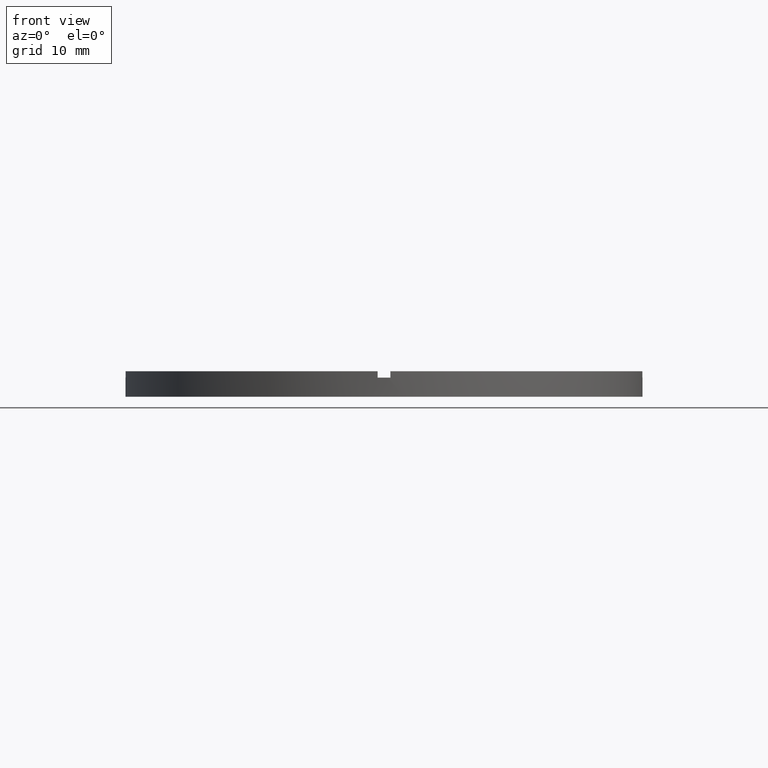
[diagram: clean part render]
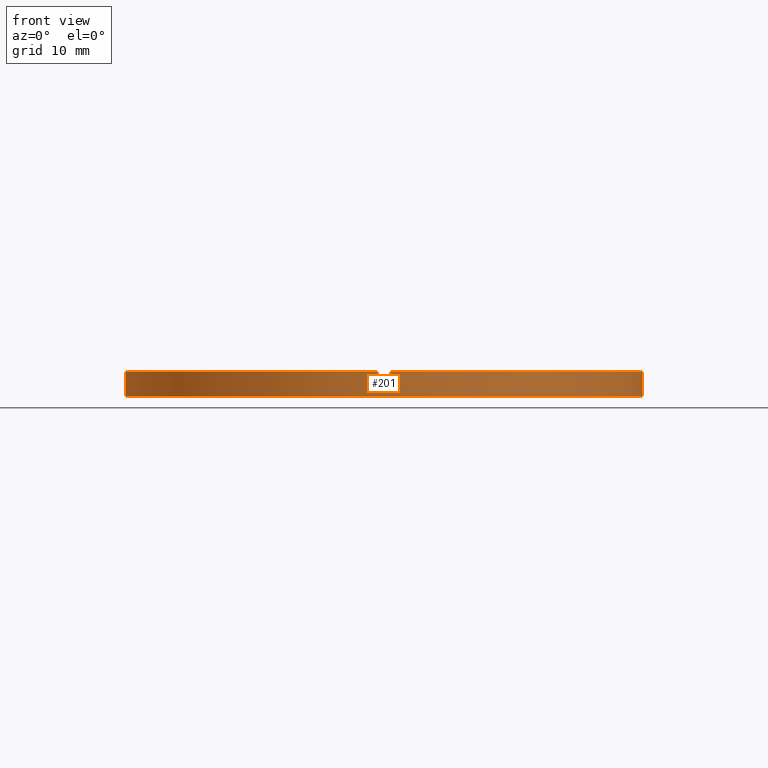
[diagram: same view with one face highlighted and labeled with its STEP entity id]
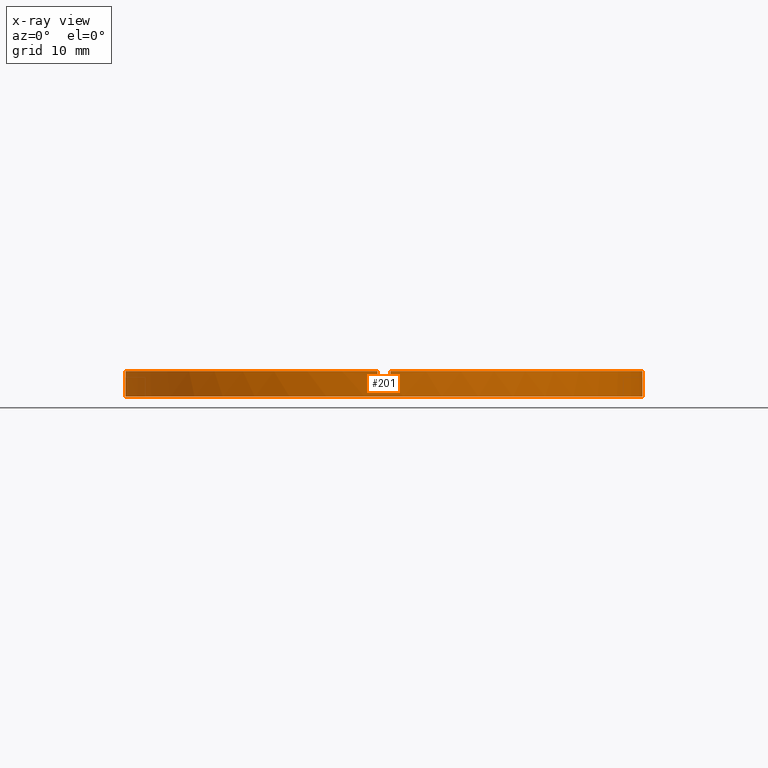
[diagram: x-ray of the same camera — body ghosted, the highlighted face saturated]
A machine part, front view. The second image highlights one B-rep face of the part: STEP entity #201.
The next image is the same camera in x-ray: the body ghosted, the highlighted face saturated — about 0% of this face is hidden behind the body in this view.
In plain terms, the highlighted cylindrical surface (partial cylindrical patch) has radius 40.5 mm, axis along (-0, -0, -1).
Its self-contained STEP definition (entity closure, byte-faithful):
#1 = AXIS2_PLACEMENT_3D ( 'NONE', #721, #779, #77 ) ;
#22 = AXIS2_PLACEMENT_3D ( 'NONE', #441, #181, #245 ) ;
#29 = VECTOR ( 'NONE', #524, 1000.000000000000000 ) ;
#34 = DIRECTION ( 'NONE',  ( 1.000000000000000000, 0.000000000000000000, 0.000000000000000000 ) ) ;
#41 = CARTESIAN_POINT ( 'NONE',  ( 40.50000000000000000, 4.959819536546780600E-15, 0.000000000000000000 ) ) ;
#50 = CARTESIAN_POINT ( 'NONE',  ( 40.50000000000000000, 4.959819536546780600E-15, 4.000000000000000000 ) ) ;
#52 = CIRCLE ( 'NONE', #183, 40.50000000000000000 ) ;
#62 = CIRCLE ( 'NONE', #116, 40.50000000000000000 ) ;
#64 = LINE ( 'NONE', #568, #331 ) ;
#71 = CYLINDRICAL_SURFACE ( 'NONE', #751, 40.50000000000000000 ) ;
#72 = EDGE_CURVE ( 'NONE', #162, #688, #643, .T. ) ;
#77 = DIRECTION ( 'NONE',  ( 1.000000000000000000, 0.000000000000000000, 0.000000000000000000 ) ) ;
#108 = VERTEX_POINT ( 'NONE', #127 ) ;
#116 = AXIS2_PLACEMENT_3D ( 'NONE', #548, #701, #468 ) ;
#126 = DIRECTION ( 'NONE',  ( 0.000000000000000000, 0.000000000000000000, 1.000000000000000000 ) ) ;
#127 = CARTESIAN_POINT ( 'NONE',  ( 40.50000000000000000, 4.959819536546780600E-15, 3.000000000000000000 ) ) ;
#130 = ORIENTED_EDGE ( 'NONE', *, *, #599, .F. ) ;
#131 = DIRECTION ( 'NONE',  ( -0.000000000000000000, -0.000000000000000000, -1.000000000000000000 ) ) ;
#132 = EDGE_CURVE ( 'NONE', #398, #511, #356, .T. ) ;
#157 = CARTESIAN_POINT ( 'NONE',  ( -1.000000000000159206, -40.48765243873741326, 3.000000000000000000 ) ) ;
#162 = VERTEX_POINT ( 'NONE', #157 ) ;
#164 = ORIENTED_EDGE ( 'NONE', *, *, #580, .F. ) ;
#167 = CARTESIAN_POINT ( 'NONE',  ( 40.48765243873741326, -1.000000000000156986, 4.000000000000000000 ) ) ;
#177 = DIRECTION ( 'NONE',  ( 1.000000000000000000, 0.000000000000000000, 0.000000000000000000 ) ) ;
#181 = DIRECTION ( 'NONE',  ( 0.000000000000000000, 0.000000000000000000, 1.000000000000000000 ) ) ;
#183 = AXIS2_PLACEMENT_3D ( 'NONE', #503, #718, #34 ) ;
#198 = DIRECTION ( 'NONE',  ( 0.000000000000000000, 0.000000000000000000, 1.000000000000000000 ) ) ;
#201 = ADVANCED_FACE ( 'NONE', ( #340 ), #71, .T. ) ;
#220 = ORIENTED_EDGE ( 'NONE', *, *, #257, .T. ) ;
#234 = VERTEX_POINT ( 'NONE', #448 ) ;
#236 = VERTEX_POINT ( 'NONE', #296 ) ;
#242 = ORIENTED_EDGE ( 'NONE', *, *, #72, .T. ) ;
#245 = DIRECTION ( 'NONE',  ( 1.000000000000000000, 0.000000000000000000, 0.000000000000000000 ) ) ;
#252 = VERTEX_POINT ( 'NONE', #382 ) ;
#257 = EDGE_CURVE ( 'NONE', #758, #236, #327, .T. ) ;
#258 = CARTESIAN_POINT ( 'NONE',  ( 0.000000000000000000, 0.000000000000000000, 4.000000000000000000 ) ) ;
#260 = DIRECTION ( 'NONE',  ( 1.000000000000000000, 0.000000000000000000, 0.000000000000000000 ) ) ;
#264 = CARTESIAN_POINT ( 'NONE',  ( 0.9999999999998409050, -40.48765243873742037, 4.000000000000000000 ) ) ;
#265 = EDGE_CURVE ( 'NONE', #729, #108, #324, .T. ) ;
#269 = CARTESIAN_POINT ( 'NONE',  ( 40.48765243873741326, -1.000000000000156986, 4.000000000000000000 ) ) ;
#281 = CIRCLE ( 'NONE', #22, 40.50000000000000000 ) ;
#285 = EDGE_CURVE ( 'NONE', #162, #430, #52, .T. ) ;
#289 = DIRECTION ( 'NONE',  ( -0.000000000000000000, -0.000000000000000000, -1.000000000000000000 ) ) ;
#296 = CARTESIAN_POINT ( 'NONE',  ( -40.50000000000000000, 0.000000000000000000, 0.000000000000000000 ) ) ;
#306 = DIRECTION ( 'NONE',  ( -0.000000000000000000, -0.000000000000000000, -1.000000000000000000 ) ) ;
#310 = CARTESIAN_POINT ( 'NONE',  ( 0.9999999999998409050, -40.48765243873742037, 3.000000000000000000 ) ) ;
#321 = EDGE_CURVE ( 'NONE', #398, #430, #64, .T. ) ;
#324 = CIRCLE ( 'NONE', #715, 40.50000000000000000 ) ;
#325 = VECTOR ( 'NONE', #545, 1000.000000000000000 ) ;
#327 = LINE ( 'NONE', #614, #573 ) ;
#331 = VECTOR ( 'NONE', #289, 1000.000000000000000 ) ;
#338 = LINE ( 'NONE', #50, #325 ) ;
#340 = FACE_OUTER_BOUND ( 'NONE', #658, .T. ) ;
#346 = VECTOR ( 'NONE', #519, 1000.000000000000000 ) ;
#348 = CARTESIAN_POINT ( 'NONE',  ( 0.000000000000000000, 0.000000000000000000, 3.000000000000000000 ) ) ;
#350 = AXIS2_PLACEMENT_3D ( 'NONE', #348, #126, #177 ) ;
#356 = CIRCLE ( 'NONE', #1, 40.50000000000000000 ) ;
#364 = ORIENTED_EDGE ( 'NONE', *, *, #372, .T. ) ;
#372 = EDGE_CURVE ( 'NONE', #252, #234, #589, .T. ) ;
#382 = CARTESIAN_POINT ( 'NONE',  ( -40.48765243873741326, -1.000000000000028422, 4.000000000000000000 ) ) ;
#398 = VERTEX_POINT ( 'NONE', #264 ) ;
#401 = ORIENTED_EDGE ( 'NONE', *, *, #265, .F. ) ;
#407 = VERTEX_POINT ( 'NONE', #41 ) ;
#430 = VERTEX_POINT ( 'NONE', #310 ) ;
#435 = DIRECTION ( 'NONE',  ( -0.000000000000000000, -0.000000000000000000, -1.000000000000000000 ) ) ;
#441 = CARTESIAN_POINT ( 'NONE',  ( 0.000000000000000000, 0.000000000000000000, 0.000000000000000000 ) ) ;
#448 = CARTESIAN_POINT ( 'NONE',  ( -40.48765243873741326, -1.000000000000028422, 3.000000000000000000 ) ) ;
#468 = DIRECTION ( 'NONE',  ( 1.000000000000000000, 0.000000000000000000, 0.000000000000000000 ) ) ;
#503 = CARTESIAN_POINT ( 'NONE',  ( 0.000000000000000000, 0.000000000000000000, 3.000000000000000000 ) ) ;
#511 = VERTEX_POINT ( 'NONE', #269 ) ;
#519 = DIRECTION ( 'NONE',  ( 0.000000000000000000, 0.000000000000000000, 1.000000000000000000 ) ) ;
#524 = DIRECTION ( 'NONE',  ( 0.000000000000000000, 0.000000000000000000, 1.000000000000000000 ) ) ;
#530 = CARTESIAN_POINT ( 'NONE',  ( 40.48765243873741326, -1.000000000000156986, 3.000000000000000000 ) ) ;
#540 = DIRECTION ( 'NONE',  ( -1.000000000000000000, 0.000000000000000000, 0.000000000000000000 ) ) ;
#545 = DIRECTION ( 'NONE',  ( -0.000000000000000000, -0.000000000000000000, -1.000000000000000000 ) ) ;
#548 = CARTESIAN_POINT ( 'NONE',  ( 0.000000000000000000, 0.000000000000000000, 4.000000000000000000 ) ) ;
#550 = LINE ( 'NONE', #167, #29 ) ;
#552 = CIRCLE ( 'NONE', #350, 40.50000000000000000 ) ;
#564 = CARTESIAN_POINT ( 'NONE',  ( -40.50000000000000000, 0.000000000000000000, 3.000000000000000000 ) ) ;
#568 = CARTESIAN_POINT ( 'NONE',  ( 0.9999999999998409050, -40.48765243873742037, 4.000000000000000000 ) ) ;
#573 = VECTOR ( 'NONE', #306, 1000.000000000000000 ) ;
#580 = EDGE_CURVE ( 'NONE', #108, #407, #338, .T. ) ;
#589 = LINE ( 'NONE', #664, #593 ) ;
#593 = VECTOR ( 'NONE', #435, 1000.000000000000000 ) ;
#599 = EDGE_CURVE ( 'NONE', #252, #688, #62, .T. ) ;
#614 = CARTESIAN_POINT ( 'NONE',  ( -40.50000000000000000, 0.000000000000000000, 4.000000000000000000 ) ) ;
#635 = EDGE_CURVE ( 'NONE', #729, #511, #550, .T. ) ;
#638 = ORIENTED_EDGE ( 'NONE', *, *, #656, .T. ) ;
#643 = LINE ( 'NONE', #666, #346 ) ;
#656 = EDGE_CURVE ( 'NONE', #236, #407, #281, .T. ) ;
#658 = EDGE_LOOP ( 'NONE', ( #164, #401, #667, #737, #752, #682, #242, #130, #364, #743, #220, #638 ) ) ;
#664 = CARTESIAN_POINT ( 'NONE',  ( -40.48765243873741326, -1.000000000000028422, 4.000000000000000000 ) ) ;
#666 = CARTESIAN_POINT ( 'NONE',  ( -1.000000000000159206, -40.48765243873741326, 4.000000000000000000 ) ) ;
#667 = ORIENTED_EDGE ( 'NONE', *, *, #635, .T. ) ;
#682 = ORIENTED_EDGE ( 'NONE', *, *, #285, .F. ) ;
#688 = VERTEX_POINT ( 'NONE', #771 ) ;
#699 = EDGE_CURVE ( 'NONE', #758, #234, #552, .T. ) ;
#701 = DIRECTION ( 'NONE',  ( 0.000000000000000000, 0.000000000000000000, 1.000000000000000000 ) ) ;
#715 = AXIS2_PLACEMENT_3D ( 'NONE', #731, #198, #260 ) ;
#718 = DIRECTION ( 'NONE',  ( -0.000000000000000000, 0.000000000000000000, 1.000000000000000000 ) ) ;
#721 = CARTESIAN_POINT ( 'NONE',  ( 0.000000000000000000, 0.000000000000000000, 4.000000000000000000 ) ) ;
#729 = VERTEX_POINT ( 'NONE', #530 ) ;
#731 = CARTESIAN_POINT ( 'NONE',  ( 0.000000000000000000, 0.000000000000000000, 3.000000000000000000 ) ) ;
#737 = ORIENTED_EDGE ( 'NONE', *, *, #132, .F. ) ;
#743 = ORIENTED_EDGE ( 'NONE', *, *, #699, .F. ) ;
#751 = AXIS2_PLACEMENT_3D ( 'NONE', #258, #131, #540 ) ;
#752 = ORIENTED_EDGE ( 'NONE', *, *, #321, .T. ) ;
#758 = VERTEX_POINT ( 'NONE', #564 ) ;
#771 = CARTESIAN_POINT ( 'NONE',  ( -1.000000000000159206, -40.48765243873741326, 4.000000000000000000 ) ) ;
#779 = DIRECTION ( 'NONE',  ( 0.000000000000000000, 0.000000000000000000, 1.000000000000000000 ) ) ;